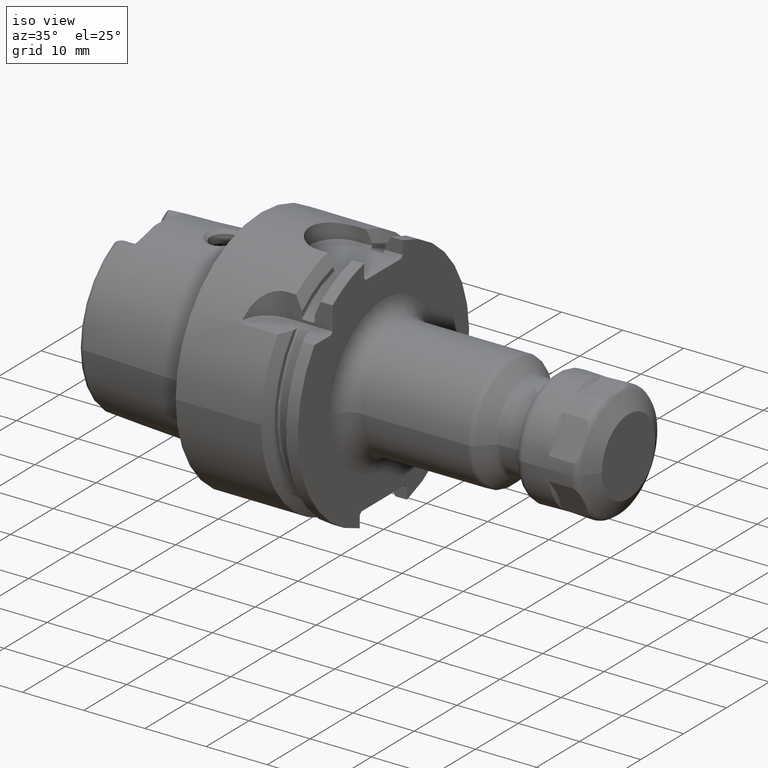
[diagram: clean part render]
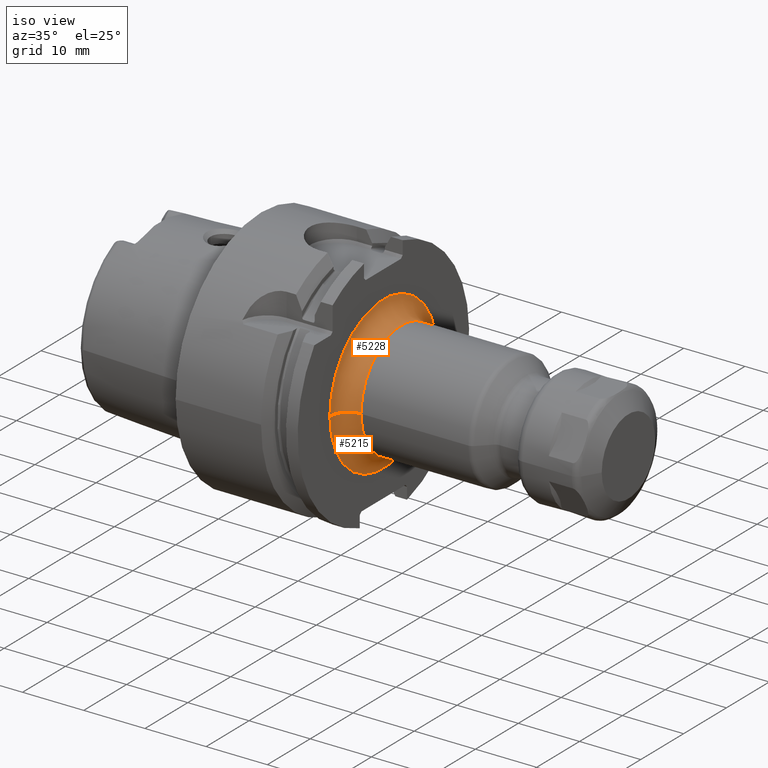
[diagram: same view with one multi-face feature highlighted, each face labeled with its STEP entity id]
A machine part, iso view. The highlighted faces form ONE feature: a constant-radius fillet chain: 2 tangent blend faces with common blend radius 3 mm. The faces share edges in the B-rep.
Their STEP definitions:
[1] entity #5228 (Torus):
#1678=CARTESIAN_POINT('',(1.995E1,0.E0,0.E0));
#1679=DIRECTION('',(1.E0,0.E0,0.E0));
#1680=DIRECTION('',(0.E0,1.E0,0.E0));
#1681=AXIS2_PLACEMENT_3D('',#1678,#1679,#1680);
#1841=CARTESIAN_POINT('',(2.295E1,-1.25E1,1.012745443063E-12));
#1842=DIRECTION('',(0.E0,-8.101852522202E-14,-1.E0));
#1843=DIRECTION('',(-1.E0,2.131628207280E-14,0.E0));
#1844=AXIS2_PLACEMENT_3D('',#1841,#1842,#1843);
#1846=CARTESIAN_POINT('',(2.295E1,1.25E1,-1.013952810602E-12));
#1847=DIRECTION('',(0.E0,8.111566973668E-14,1.E0));
#1848=DIRECTION('',(-1.E0,-2.131628207280E-14,0.E0));
#1849=AXIS2_PLACEMENT_3D('',#1846,#1847,#1848);
#1856=CARTESIAN_POINT('',(2.295E1,0.E0,0.E0));
#1857=DIRECTION('',(1.E0,0.E0,0.E0));
#1858=DIRECTION('',(0.E0,1.E0,0.E0));
#1859=AXIS2_PLACEMENT_3D('',#1856,#1857,#1858);
#3220=CARTESIAN_POINT('',(1.995E1,-1.25E1,0.E0));
#3221=CARTESIAN_POINT('',(1.995E1,1.25E1,0.E0));
#3222=VERTEX_POINT('',#3220);
#3223=VERTEX_POINT('',#3221);
#3224=CARTESIAN_POINT('',(2.295E1,-9.5E0,0.E0));
#3225=CARTESIAN_POINT('',(2.295E1,9.5E0,0.E0));
#3226=VERTEX_POINT('',#3224);
#3227=VERTEX_POINT('',#3225);
#5216=CARTESIAN_POINT('',(2.295E1,0.E0,0.E0));
#5217=DIRECTION('',(1.E0,0.E0,0.E0));
#5218=DIRECTION('',(0.E0,9.999672514283E-1,-8.092964286081E-3));
#5219=AXIS2_PLACEMENT_3D('',#5216,#5217,#5218);
#5220=TOROIDAL_SURFACE('',#5219,1.25E1,3.E0);
#5221=ORIENTED_EDGE('',*,*,#5004,.F.);
#5222=ORIENTED_EDGE('',*,*,#5211,.T.);
#5224=ORIENTED_EDGE('',*,*,#5223,.T.);
#5225=ORIENTED_EDGE('',*,*,#5207,.F.);
#5226=EDGE_LOOP('',(#5221,#5222,#5224,#5225));
#5227=FACE_OUTER_BOUND('',#5226,.F.);
#5228=ADVANCED_FACE('',(#5227),#5220,.F.);
#1682=CIRCLE('',#1681,1.25E1);
#1845=CIRCLE('',#1844,3.E0);
#1850=CIRCLE('',#1849,3.E0);
#1860=CIRCLE('',#1859,9.5E0);
#5004=EDGE_CURVE('',#3223,#3222,#1682,.T.);
#5207=EDGE_CURVE('',#3222,#3226,#1845,.T.);
#5211=EDGE_CURVE('',#3223,#3227,#1850,.T.);
#5223=EDGE_CURVE('',#3227,#3226,#1860,.T.);
[2] entity #5215 (Torus):
#1673=CARTESIAN_POINT('',(1.995E1,0.E0,0.E0));
#1674=DIRECTION('',(1.E0,0.E0,0.E0));
#1675=DIRECTION('',(0.E0,-1.E0,0.E0));
#1676=AXIS2_PLACEMENT_3D('',#1673,#1674,#1675);
#1841=CARTESIAN_POINT('',(2.295E1,-1.25E1,1.012745443063E-12));
#1842=DIRECTION('',(0.E0,-8.101852522202E-14,-1.E0));
#1843=DIRECTION('',(-1.E0,2.131628207280E-14,0.E0));
#1844=AXIS2_PLACEMENT_3D('',#1841,#1842,#1843);
#1846=CARTESIAN_POINT('',(2.295E1,1.25E1,-1.013952810602E-12));
#1847=DIRECTION('',(0.E0,8.111566973668E-14,1.E0));
#1848=DIRECTION('',(-1.E0,-2.131628207280E-14,0.E0));
#1849=AXIS2_PLACEMENT_3D('',#1846,#1847,#1848);
#1880=CARTESIAN_POINT('',(2.295E1,0.E0,0.E0));
#1881=DIRECTION('',(1.E0,0.E0,0.E0));
#1882=DIRECTION('',(0.E0,-1.E0,0.E0));
#1883=AXIS2_PLACEMENT_3D('',#1880,#1881,#1882);
#3220=CARTESIAN_POINT('',(1.995E1,-1.25E1,0.E0));
#3221=CARTESIAN_POINT('',(1.995E1,1.25E1,0.E0));
#3222=VERTEX_POINT('',#3220);
#3223=VERTEX_POINT('',#3221);
#3224=CARTESIAN_POINT('',(2.295E1,-9.5E0,0.E0));
#3225=CARTESIAN_POINT('',(2.295E1,9.5E0,0.E0));
#3226=VERTEX_POINT('',#3224);
#3227=VERTEX_POINT('',#3225);
#5201=CARTESIAN_POINT('',(2.295E1,0.E0,0.E0));
#5202=DIRECTION('',(1.E0,0.E0,0.E0));
#5203=DIRECTION('',(0.E0,-9.999672514283E-1,8.092964286081E-3));
#5204=AXIS2_PLACEMENT_3D('',#5201,#5202,#5203);
#5205=TOROIDAL_SURFACE('',#5204,1.25E1,3.E0);
#5206=ORIENTED_EDGE('',*,*,#5002,.F.);
#5208=ORIENTED_EDGE('',*,*,#5207,.T.);
#5210=ORIENTED_EDGE('',*,*,#5209,.T.);
#5212=ORIENTED_EDGE('',*,*,#5211,.F.);
#5213=EDGE_LOOP('',(#5206,#5208,#5210,#5212));
#5214=FACE_OUTER_BOUND('',#5213,.F.);
#5215=ADVANCED_FACE('',(#5214),#5205,.F.);
#1677=CIRCLE('',#1676,1.25E1);
#1845=CIRCLE('',#1844,3.E0);
#1850=CIRCLE('',#1849,3.E0);
#1884=CIRCLE('',#1883,9.5E0);
#5002=EDGE_CURVE('',#3222,#3223,#1677,.T.);
#5207=EDGE_CURVE('',#3222,#3226,#1845,.T.);
#5209=EDGE_CURVE('',#3226,#3227,#1884,.T.);
#5211=EDGE_CURVE('',#3223,#3227,#1850,.T.);